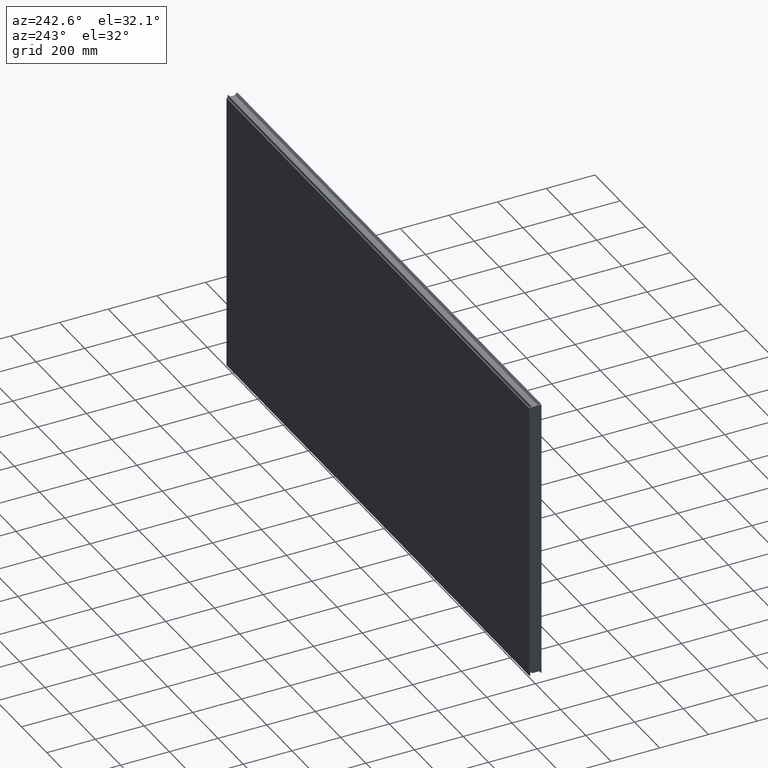
[diagram: clean part render]
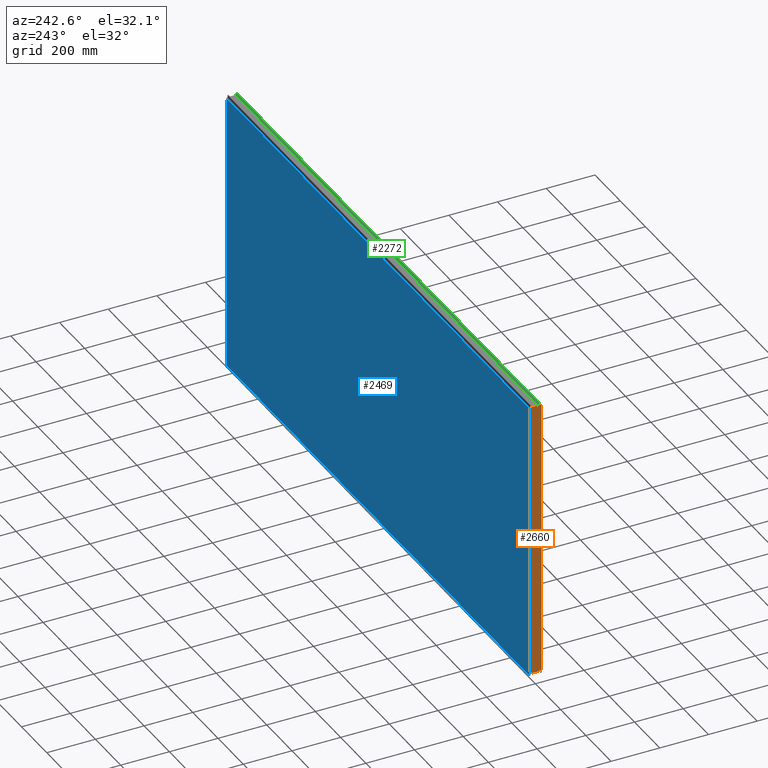
[diagram: same view with three faces highlighted in distinct colors, each labeled with its STEP entity id]
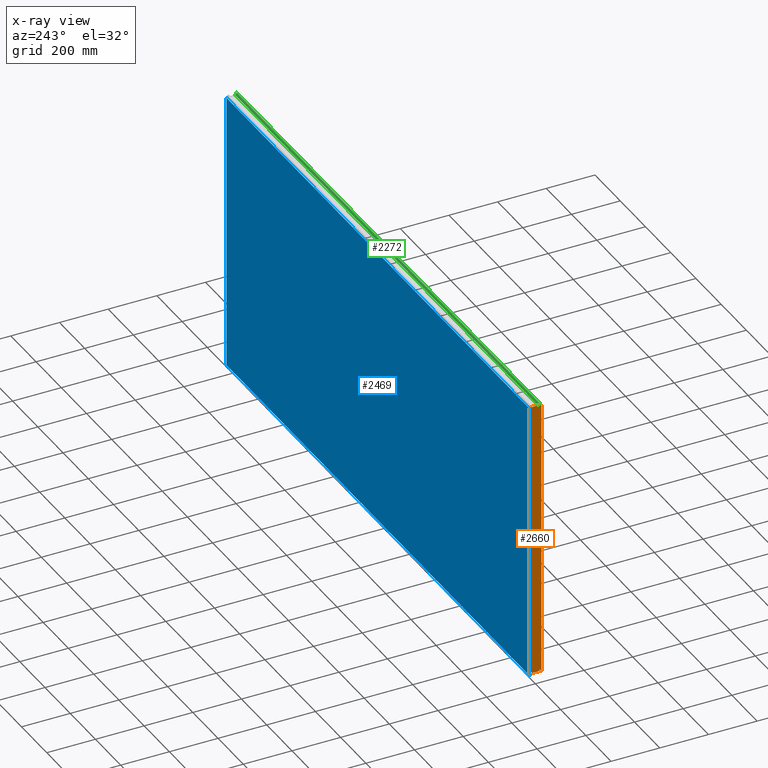
[diagram: x-ray of the same camera — body ghosted, the three highlighted faces saturated]
A machine part, auxiliary view with three faces highlighted in distinct colors.
The next image is the same camera in x-ray (body ghosted, the three faces saturated) — at least one of them is partly hidden behind the body in this view.
Their STEP definitions:

[orange] entity #2660 — the highlighted planar face has unit normal (1, -0, 0).
#2 = CARTESIAN_POINT ( 'NONE',  ( -1200.000000000000227, 13.00000000000478551, 573.0000000000111413 ) ) ;
#22 = CARTESIAN_POINT ( 'NONE',  ( -1200.000000000000227, -24.50000000000007105, 570.0500000000002956 ) ) ;
#23 = DIRECTION ( 'NONE',  ( 1.000000000000000000, 0.000000000000000000, 0.000000000000000000 ) ) ;
#50 = DIRECTION ( 'NONE',  ( 0.000000000000000000, -0.05233595624293120585, 0.9986295347545744994 ) ) ;
#63 = DIRECTION ( 'NONE',  ( -1.000000000000000000, -0.000000000000000000, -0.000000000000000000 ) ) ;
#64 = LINE ( 'NONE', #500, #332 ) ;
#70 = CIRCLE ( 'NONE', #1611, 2.450000000000063238 ) ;
#93 = CARTESIAN_POINT ( 'NONE',  ( -1200.000000000000227, 2684.120642039801169, -572.5868024235513758 ) ) ;
#108 = EDGE_CURVE ( 'NONE', #224, #1026, #551, .T. ) ;
#149 = VERTEX_POINT ( 'NONE', #350 ) ;
#156 = CIRCLE ( 'NONE', #1429, 2.450000000000063238 ) ;
#160 = CIRCLE ( 'NONE', #247, 2.450000000000063238 ) ;
#173 = DIRECTION ( 'NONE',  ( 0.000000000000000000, -0.6691306063588638997, 0.7431448254773891371 ) ) ;
#182 = CARTESIAN_POINT ( 'NONE',  ( -1200.000000000000227, -21.45212422113040773, -580.0811207321764869 ) ) ;
#189 = VECTOR ( 'NONE', #1962, 1000.000000000000000 ) ;
#224 = VERTEX_POINT ( 'NONE', #22 ) ;
#247 = AXIS2_PLACEMENT_3D ( 'NONE', #741, #1572, #1796 ) ;
#267 = VERTEX_POINT ( 'NONE', #2110 ) ;
#294 = DIRECTION ( 'NONE',  ( 0.000000000000000000, -0.7431448254773871387, 0.6691306063588661202 ) ) ;
#332 = VECTOR ( 'NONE', #1332, 1000.000000000000000 ) ;
#350 = CARTESIAN_POINT ( 'NONE',  ( -1200.000000000000227, 24.55000000000007176, -573.0000000000002274 ) ) ;
#351 = VERTEX_POINT ( 'NONE', #884 ) ;
#377 = VECTOR ( 'NONE', #2121, 1000.000000000000000 ) ;
#386 = CARTESIAN_POINT ( 'NONE',  ( -1200.000000000000227, -13.00000000000478551, 572.9999999999886313 ) ) ;
#392 = ORIENTED_EDGE ( 'NONE', *, *, #1952, .T. ) ;
#395 = VERTEX_POINT ( 'NONE', #732 ) ;
#399 = CARTESIAN_POINT ( 'NONE',  ( -1200.000000000000227, -20.91707518332674098, -569.8717769072046622 ) ) ;
#416 = VERTEX_POINT ( 'NONE', #1127 ) ;
#424 = CARTESIAN_POINT ( 'NONE',  ( -1200.000000000000227, -18.47043282317802237, -569.9999999999998863 ) ) ;
#432 = ORIENTED_EDGE ( 'NONE', *, *, #1635, .T. ) ;
#443 = EDGE_CURVE ( 'NONE', #2269, #1265, #2547, .T. ) ;
#444 = VERTEX_POINT ( 'NONE', #926 ) ;
#462 = EDGE_CURVE ( 'NONE', #1609, #395, #1938, .T. ) ;
#464 = VECTOR ( 'NONE', #50, 1000.000000000000114 ) ;
#470 = VECTOR ( 'NONE', #1780, 1000.000000000000000 ) ;
#482 = EDGE_CURVE ( 'NONE', #267, #351, #1142, .T. ) ;
#486 = CARTESIAN_POINT ( 'NONE',  ( -1200.000000000000227, 2684.120642039801169, -573.0000000000000000 ) ) ;
#499 = EDGE_CURVE ( 'NONE', #760, #1401, #2472, .T. ) ;
#500 = CARTESIAN_POINT ( 'NONE',  ( -1200.000000000000227, 2684.120642039801169, 573.0000000000000000 ) ) ;
#510 = LINE ( 'NONE', #1304, #189 ) ;
#529 = ORIENTED_EDGE ( 'NONE', *, *, #482, .T. ) ;
#541 = ORIENTED_EDGE ( 'NONE', *, *, #1547, .T. ) ;
#551 = CIRCLE ( 'NONE', #2599, 4.134690237096227960 ) ;
#553 = CIRCLE ( 'NONE', #2346, 2.450000000000063238 ) ;
#562 = CIRCLE ( 'NONE', #1211, 0.05000000000010551560 ) ;
#576 = DIRECTION ( 'NONE',  ( 1.000000000000000000, 0.000000000000000000, 0.000000000000000000 ) ) ;
#609 = ORIENTED_EDGE ( 'NONE', *, *, #2190, .T. ) ;
#654 = LINE ( 'NONE', #1942, #2136 ) ;
#671 = CARTESIAN_POINT ( 'NONE',  ( -1200.000000000000227, -18.47043282317802237, -569.9999999999998863 ) ) ;
#674 = DIRECTION ( 'NONE',  ( 0.000000000000000000, 1.000000000000000000, 0.000000000000000000 ) ) ;
#707 = ORIENTED_EDGE ( 'NONE', *, *, #1482, .T. ) ;
#709 = EDGE_CURVE ( 'NONE', #267, #1200, #827, .T. ) ;
#715 = CARTESIAN_POINT ( 'NONE',  ( -1200.000000000000227, -12.99999999999997691, -572.5868024235511484 ) ) ;
#717 = CARTESIAN_POINT ( 'NONE',  ( -1200.000000000000227, 21.45212422113040773, -580.0811207321764869 ) ) ;
#732 = CARTESIAN_POINT ( 'NONE',  ( -1200.000000000000227, 20.91707518332674098, -569.8717769072046622 ) ) ;
#741 = CARTESIAN_POINT ( 'NONE',  ( -1200.000000000000227, 18.47043282317802237, -569.9999999999998863 ) ) ;
#759 = CARTESIAN_POINT ( 'NONE',  ( -1200.000000000000227, 13.44999999999999929, -572.5868024235512621 ) ) ;
#760 = VERTEX_POINT ( 'NONE', #2515 ) ;
#810 = DIRECTION ( 'NONE',  ( 0.000000000000000000, -0.05233595624293120585, -0.9986295347545744994 ) ) ;
#824 = VECTOR ( 'NONE', #294, 1000.000000000000000 ) ;
#827 = LINE ( 'NONE', #2, #2644 ) ;
#833 = EDGE_CURVE ( 'NONE', #1401, #149, #1098, .T. ) ;
#836 = EDGE_CURVE ( 'NONE', #416, #2064, #510, .T. ) ;
#841 = CARTESIAN_POINT ( 'NONE',  ( -1200.000000000000227, 13.00000000000034461, -572.5868024235513758 ) ) ;
#850 = CARTESIAN_POINT ( 'NONE',  ( -1200.000000000000227, 18.47043282317802237, -567.5499999999997272 ) ) ;
#878 = EDGE_CURVE ( 'NONE', #1491, #1637, #553, .T. ) ;
#884 = CARTESIAN_POINT ( 'NONE',  ( -1200.000000000000227, -12.99999999999990052, -573.0000000000000000 ) ) ;
#926 = CARTESIAN_POINT ( 'NONE',  ( -1200.000000000000227, 13.44999999999999929, -572.5868024235512621 ) ) ;
#951 = CARTESIAN_POINT ( 'NONE',  ( -1200.000000000000227, 24.50000000000007461, 574.1846902370965608 ) ) ;
#961 = CARTESIAN_POINT ( 'NONE',  ( -1200.000000000000227, -20.53866532607169404, 573.0000000000000000 ) ) ;
#999 = AXIS2_PLACEMENT_3D ( 'NONE', #951, #2007, #1589 ) ;
#1026 = VERTEX_POINT ( 'NONE', #961 ) ;
#1041 = VECTOR ( 'NONE', #1575, 1000.000000000000000 ) ;
#1045 = DIRECTION ( 'NONE',  ( 0.000000000000000000, 4.198290539084077792E-15, 1.000000000000000000 ) ) ;
#1073 = CARTESIAN_POINT ( 'NONE',  ( -1200.000000000000227, -16.64972800075841164, -568.3606300144206216 ) ) ;
#1075 = EDGE_CURVE ( 'NONE', #2546, #1026, #64, .T. ) ;
#1080 = ORIENTED_EDGE ( 'NONE', *, *, #2282, .F. ) ;
#1082 = DIRECTION ( 'NONE',  ( 0.000000000000000000, 0.000000000000000000, -1.000000000000000000 ) ) ;
#1086 = CARTESIAN_POINT ( 'NONE',  ( -1200.000000000000227, -21.08101840872202359, -573.0000000000000000 ) ) ;
#1088 = ORIENTED_EDGE ( 'NONE', *, *, #2374, .T. ) ;
#1091 = ORIENTED_EDGE ( 'NONE', *, *, #709, .F. ) ;
#1098 = LINE ( 'NONE', #1935, #377 ) ;
#1127 = CARTESIAN_POINT ( 'NONE',  ( -1200.000000000000227, -24.55000000000007176, 570.0000000000001137 ) ) ;
#1141 = ORIENTED_EDGE ( 'NONE', *, *, #443, .F. ) ;
#1142 = LINE ( 'NONE', #486, #1860 ) ;
#1146 = ORIENTED_EDGE ( 'NONE', *, *, #499, .T. ) ;
#1161 = LINE ( 'NONE', #1765, #470 ) ;
#1200 = VERTEX_POINT ( 'NONE', #841 ) ;
#1211 = AXIS2_PLACEMENT_3D ( 'NONE', #2271, #2077, #1419 ) ;
#1217 = DIRECTION ( 'NONE',  ( 0.000000000000000000, 4.198290539084077792E-15, -1.000000000000000000 ) ) ;
#1218 = LINE ( 'NONE', #2059, #2564 ) ;
#1234 = ORIENTED_EDGE ( 'NONE', *, *, #836, .F. ) ;
#1252 = VECTOR ( 'NONE', #2653, 1000.000000000000000 ) ;
#1255 = DIRECTION ( 'NONE',  ( 0.000000000000000000, 0.000000000000000000, -1.000000000000000000 ) ) ;
#1265 = VERTEX_POINT ( 'NONE', #715 ) ;
#1304 = CARTESIAN_POINT ( 'NONE',  ( -1200.000000000000227, -24.55000000000007176, 573.0000000000000000 ) ) ;
#1309 = CARTESIAN_POINT ( 'NONE',  ( -1200.000000000000227, 16.64972800075840809, -568.3606300144206216 ) ) ;
#1321 = DIRECTION ( 'NONE',  ( -0.000000000000000000, -1.000000000000000000, -0.000000000000000000 ) ) ;
#1332 = DIRECTION ( 'NONE',  ( -0.000000000000000000, -1.000000000000000000, -0.000000000000000000 ) ) ;
#1354 = VERTEX_POINT ( 'NONE', #2545 ) ;
#1362 = VERTEX_POINT ( 'NONE', #1086 ) ;
#1391 = DIRECTION ( 'NONE',  ( 0.000000000000000000, 0.000000000000000000, -1.000000000000000000 ) ) ;
#1399 = LINE ( 'NONE', #386, #1919 ) ;
#1401 = VERTEX_POINT ( 'NONE', #1785 ) ;
#1416 = CARTESIAN_POINT ( 'NONE',  ( -1200.000000000000227, -24.50000000000007461, 574.1846902370965608 ) ) ;
#1419 = DIRECTION ( 'NONE',  ( 0.000000000000000000, 0.000000000000000000, -1.000000000000000000 ) ) ;
#1421 = CARTESIAN_POINT ( 'NONE',  ( -1200.000000000000227, 20.53866532607163720, 573.0000000000000000 ) ) ;
#1422 = VECTOR ( 'NONE', #674, 1000.000000000000000 ) ;
#1427 = EDGE_CURVE ( 'NONE', #1554, #2269, #2231, .T. ) ;
#1429 = AXIS2_PLACEMENT_3D ( 'NONE', #424, #1875, #1255 ) ;
#1482 = EDGE_CURVE ( 'NONE', #2546, #760, #2433, .T. ) ;
#1491 = VERTEX_POINT ( 'NONE', #2420 ) ;
#1492 = PLANE ( 'NONE',  #2359 ) ;
#1517 = EDGE_CURVE ( 'NONE', #1637, #1362, #2044, .T. ) ;
#1518 = DIRECTION ( 'NONE',  ( 0.000000000000000000, -0.6691306063588638997, -0.7431448254773891371 ) ) ;
#1542 = ORIENTED_EDGE ( 'NONE', *, *, #1427, .F. ) ;
#1547 = EDGE_CURVE ( 'NONE', #2495, #1491, #156, .T. ) ;
#1553 = EDGE_LOOP ( 'NONE', ( #1141, #1542, #432, #541, #2045, #2715, #1652, #1234, #1906, #2458, #2367, #707, #1146, #2527, #2197, #1856, #1088, #392, #609, #1080, #1895, #1091, #529, #1612 ) ) ;
#1554 = VERTEX_POINT ( 'NONE', #1670 ) ;
#1572 = DIRECTION ( 'NONE',  ( 1.000000000000000000, 0.000000000000000000, 0.000000000000000000 ) ) ;
#1575 = DIRECTION ( 'NONE',  ( 0.000000000000000000, -0.7431448254773871387, -0.6691306063588661202 ) ) ;
#1589 = DIRECTION ( 'NONE',  ( 0.000000000000000000, 0.000000000000000000, -1.000000000000000000 ) ) ;
#1609 = VERTEX_POINT ( 'NONE', #1839 ) ;
#1611 = AXIS2_PLACEMENT_3D ( 'NONE', #2349, #23, #1767 ) ;
#1612 = ORIENTED_EDGE ( 'NONE', *, *, #2605, .F. ) ;
#1613 = LINE ( 'NONE', #1819, #1252 ) ;
#1635 = EDGE_CURVE ( 'NONE', #1554, #2495, #1218, .T. ) ;
#1637 = VERTEX_POINT ( 'NONE', #399 ) ;
#1652 = ORIENTED_EDGE ( 'NONE', *, *, #1847, .T. ) ;
#1670 = CARTESIAN_POINT ( 'NONE',  ( -1200.000000000000227, -13.11558482853517305, -572.2856936506898364 ) ) ;
#1679 = CARTESIAN_POINT ( 'NONE',  ( -1200.000000000000227, -13.44999999999973994, -572.5868024235513758 ) ) ;
#1694 = VERTEX_POINT ( 'NONE', #850 ) ;
#1724 = DIRECTION ( 'NONE',  ( 0.000000000000000000, 0.000000000000000000, -1.000000000000000000 ) ) ;
#1746 = DIRECTION ( 'NONE',  ( 0.000000000000000000, 0.000000000000000000, -1.000000000000000000 ) ) ;
#1765 = CARTESIAN_POINT ( 'NONE',  ( -1200.000000000000227, 2684.120642039801169, -573.0000000000000000 ) ) ;
#1767 = DIRECTION ( 'NONE',  ( 0.000000000000000000, 0.000000000000000000, -1.000000000000000000 ) ) ;
#1780 = DIRECTION ( 'NONE',  ( -0.000000000000000000, -1.000000000000000000, -0.000000000000000000 ) ) ;
#1785 = CARTESIAN_POINT ( 'NONE',  ( -1200.000000000000227, 24.55000000000015348, 570.0000000000001137 ) ) ;
#1796 = DIRECTION ( 'NONE',  ( 0.000000000000000000, 0.000000000000000000, -1.000000000000000000 ) ) ;
#1798 = CARTESIAN_POINT ( 'NONE',  ( -1200.000000000000227, 2684.120642039801169, -572.5868024235513758 ) ) ;
#1819 = CARTESIAN_POINT ( 'NONE',  ( -1200.000000000000227, 2684.120642039801169, -573.0000000000000000 ) ) ;
#1839 = CARTESIAN_POINT ( 'NONE',  ( -1200.000000000000227, 21.08101840872202715, -573.0000000000000000 ) ) ;
#1847 = EDGE_CURVE ( 'NONE', #1362, #2064, #1161, .T. ) ;
#1856 = ORIENTED_EDGE ( 'NONE', *, *, #462, .T. ) ;
#1860 = VECTOR ( 'NONE', #1321, 1000.000000000000000 ) ;
#1875 = DIRECTION ( 'NONE',  ( 1.000000000000000000, 0.000000000000000000, 0.000000000000000000 ) ) ;
#1895 = ORIENTED_EDGE ( 'NONE', *, *, #2622, .F. ) ;
#1906 = ORIENTED_EDGE ( 'NONE', *, *, #1972, .T. ) ;
#1919 = VECTOR ( 'NONE', #1217, 1000.000000000000000 ) ;
#1926 = CARTESIAN_POINT ( 'NONE',  ( -1200.000000000000227, 24.50000000000007461, 570.0000000000001137 ) ) ;
#1935 = CARTESIAN_POINT ( 'NONE',  ( -1200.000000000000227, 24.55000000000007176, 573.0000000000000000 ) ) ;
#1938 = LINE ( 'NONE', #717, #464 ) ;
#1942 = CARTESIAN_POINT ( 'NONE',  ( -1200.000000000000227, 16.64972800075840809, -568.3606300144206216 ) ) ;
#1952 = EDGE_CURVE ( 'NONE', #1694, #2414, #160, .T. ) ;
#1962 = DIRECTION ( 'NONE',  ( 0.000000000000000000, 0.000000000000000000, -1.000000000000000000 ) ) ;
#1972 = EDGE_CURVE ( 'NONE', #416, #224, #562, .T. ) ;
#2007 = DIRECTION ( 'NONE',  ( 1.000000000000000000, 0.000000000000000000, 0.000000000000000000 ) ) ;
#2026 = CARTESIAN_POINT ( 'NONE',  ( -1200.000000000000227, -24.55000000000007176, -573.0000000000000000 ) ) ;
#2044 = LINE ( 'NONE', #182, #2518 ) ;
#2045 = ORIENTED_EDGE ( 'NONE', *, *, #878, .T. ) ;
#2059 = CARTESIAN_POINT ( 'NONE',  ( -1200.000000000000227, -16.64972800075840809, -568.3606300144206216 ) ) ;
#2064 = VERTEX_POINT ( 'NONE', #2026 ) ;
#2077 = DIRECTION ( 'NONE',  ( -1.000000000000000000, -0.000000000000000000, -0.000000000000000000 ) ) ;
#2085 = EDGE_CURVE ( 'NONE', #149, #1609, #1613, .T. ) ;
#2110 = CARTESIAN_POINT ( 'NONE',  ( -1200.000000000000227, 12.99999999999990052, -573.0000000000000000 ) ) ;
#2121 = DIRECTION ( 'NONE',  ( 0.000000000000000000, 0.000000000000000000, -1.000000000000000000 ) ) ;
#2136 = VECTOR ( 'NONE', #1518, 1000.000000000000114 ) ;
#2190 = EDGE_CURVE ( 'NONE', #2414, #1354, #654, .T. ) ;
#2197 = ORIENTED_EDGE ( 'NONE', *, *, #2085, .T. ) ;
#2230 = DIRECTION ( 'NONE',  ( 0.000000000000000000, 1.000000000000000000, 0.000000000000000000 ) ) ;
#2231 = LINE ( 'NONE', #2615, #1041 ) ;
#2259 = LINE ( 'NONE', #1798, #2268 ) ;
#2268 = VECTOR ( 'NONE', #2230, 1000.000000000000000 ) ;
#2269 = VERTEX_POINT ( 'NONE', #1679 ) ;
#2271 = CARTESIAN_POINT ( 'NONE',  ( -1200.000000000000227, -24.50000000000007461, 570.0000000000001137 ) ) ;
#2282 = EDGE_CURVE ( 'NONE', #444, #1354, #2380, .T. ) ;
#2346 = AXIS2_PLACEMENT_3D ( 'NONE', #671, #2373, #1724 ) ;
#2349 = CARTESIAN_POINT ( 'NONE',  ( -1200.000000000000227, 18.47043282317802237, -569.9999999999998863 ) ) ;
#2359 = AXIS2_PLACEMENT_3D ( 'NONE', #2721, #2529, #1082 ) ;
#2367 = ORIENTED_EDGE ( 'NONE', *, *, #1075, .F. ) ;
#2373 = DIRECTION ( 'NONE',  ( 1.000000000000000000, 0.000000000000000000, 0.000000000000000000 ) ) ;
#2374 = EDGE_CURVE ( 'NONE', #395, #1694, #70, .T. ) ;
#2380 = LINE ( 'NONE', #759, #824 ) ;
#2414 = VERTEX_POINT ( 'NONE', #1309 ) ;
#2420 = CARTESIAN_POINT ( 'NONE',  ( -1200.000000000000227, -18.47043282317802237, -567.5499999999997272 ) ) ;
#2428 = AXIS2_PLACEMENT_3D ( 'NONE', #1926, #63, #1746 ) ;
#2433 = CIRCLE ( 'NONE', #999, 4.134690237096338983 ) ;
#2458 = ORIENTED_EDGE ( 'NONE', *, *, #108, .T. ) ;
#2472 = CIRCLE ( 'NONE', #2428, 0.05000000000010551560 ) ;
#2488 = FACE_OUTER_BOUND ( 'NONE', #1553, .T. ) ;
#2495 = VERTEX_POINT ( 'NONE', #1073 ) ;
#2515 = CARTESIAN_POINT ( 'NONE',  ( -1200.000000000000227, 24.50000000000007461, 570.0500000000001819 ) ) ;
#2518 = VECTOR ( 'NONE', #810, 1000.000000000000114 ) ;
#2527 = ORIENTED_EDGE ( 'NONE', *, *, #833, .T. ) ;
#2529 = DIRECTION ( 'NONE',  ( 1.000000000000000000, -0.000000000000000000, 0.000000000000000000 ) ) ;
#2545 = CARTESIAN_POINT ( 'NONE',  ( -1200.000000000000227, 13.11558482853517305, -572.2856936506898364 ) ) ;
#2546 = VERTEX_POINT ( 'NONE', #1421 ) ;
#2547 = LINE ( 'NONE', #93, #1422 ) ;
#2564 = VECTOR ( 'NONE', #173, 1000.000000000000114 ) ;
#2599 = AXIS2_PLACEMENT_3D ( 'NONE', #1416, #576, #1391 ) ;
#2605 = EDGE_CURVE ( 'NONE', #1265, #351, #1399, .T. ) ;
#2615 = CARTESIAN_POINT ( 'NONE',  ( -1200.000000000000227, -13.11558482853517305, -572.2856936506898364 ) ) ;
#2622 = EDGE_CURVE ( 'NONE', #1200, #444, #2259, .T. ) ;
#2644 = VECTOR ( 'NONE', #1045, 1000.000000000000000 ) ;
#2653 = DIRECTION ( 'NONE',  ( -0.000000000000000000, -1.000000000000000000, -0.000000000000000000 ) ) ;
#2660 = ADVANCED_FACE ( 'NONE', ( #2488 ), #1492, .F. ) ;
#2715 = ORIENTED_EDGE ( 'NONE', *, *, #1517, .T. ) ;
#2721 = CARTESIAN_POINT ( 'NONE',  ( -1200.000000000000227, 2684.120642039801169, 573.0000000000000000 ) ) ;

[blue] entity #2469 — the highlighted planar face has unit normal (0, -1, 0).
#4 = ORIENTED_EDGE ( 'NONE', *, *, #828, .T. ) ;
#35 = LINE ( 'NONE', #106, #322 ) ;
#76 = DIRECTION ( 'NONE',  ( -1.000000000000000000, -0.000000000000000000, -0.000000000000000000 ) ) ;
#102 = VECTOR ( 'NONE', #2250, 1000.000000000000000 ) ;
#106 = CARTESIAN_POINT ( 'NONE',  ( -1200.000000000000227, 25.00000000000000000, 573.0000000000000000 ) ) ;
#123 = EDGE_CURVE ( 'NONE', #522, #716, #2052, .T. ) ;
#179 = EDGE_LOOP ( 'NONE', ( #2584, #4, #236, #363 ) ) ;
#236 = ORIENTED_EDGE ( 'NONE', *, *, #512, .T. ) ;
#288 = VECTOR ( 'NONE', #744, 1000.000000000000000 ) ;
#322 = VECTOR ( 'NONE', #542, 1000.000000000000000 ) ;
#363 = ORIENTED_EDGE ( 'NONE', *, *, #1433, .F. ) ;
#453 = VERTEX_POINT ( 'NONE', #2590 ) ;
#512 = EDGE_CURVE ( 'NONE', #2157, #453, #35, .T. ) ;
#522 = VERTEX_POINT ( 'NONE', #953 ) ;
#542 = DIRECTION ( 'NONE',  ( -0.000000000000000000, -0.000000000000000000, 1.000000000000000000 ) ) ;
#663 = PLANE ( 'NONE',  #1131 ) ;
#716 = VERTEX_POINT ( 'NONE', #1876 ) ;
#744 = DIRECTION ( 'NONE',  ( -1.000000000000000000, 0.000000000000000000, 0.000000000000000000 ) ) ;
#828 = EDGE_CURVE ( 'NONE', #716, #2157, #1546, .T. ) ;
#885 = CARTESIAN_POINT ( 'NONE',  ( 0.000000000000000000, 25.00000000000000000, 0.000000000000000000 ) ) ;
#953 = CARTESIAN_POINT ( 'NONE',  ( 1199.999999999999773, 25.00000000000007105, 570.0000000000001137 ) ) ;
#1131 = AXIS2_PLACEMENT_3D ( 'NONE', #885, #1717, #1151 ) ;
#1151 = DIRECTION ( 'NONE',  ( 0.000000000000000000, -0.000000000000000000, -1.000000000000000000 ) ) ;
#1179 = LINE ( 'NONE', #2658, #288 ) ;
#1433 = EDGE_CURVE ( 'NONE', #522, #453, #1179, .T. ) ;
#1546 = LINE ( 'NONE', #2383, #2510 ) ;
#1705 = FACE_OUTER_BOUND ( 'NONE', #179, .T. ) ;
#1717 = DIRECTION ( 'NONE',  ( 0.000000000000000000, -1.000000000000000000, 0.000000000000000000 ) ) ;
#1735 = CARTESIAN_POINT ( 'NONE',  ( -1200.000000000000227, 25.00000000000000000, -579.9999999999998863 ) ) ;
#1876 = CARTESIAN_POINT ( 'NONE',  ( 1199.999999999999773, 25.00000000000000000, -579.9999999999998863 ) ) ;
#2052 = LINE ( 'NONE', #2621, #102 ) ;
#2157 = VERTEX_POINT ( 'NONE', #1735 ) ;
#2250 = DIRECTION ( 'NONE',  ( 0.000000000000000000, 0.000000000000000000, -1.000000000000000000 ) ) ;
#2383 = CARTESIAN_POINT ( 'NONE',  ( 1199.999999999999773, 25.00000000000000000, -579.9999999999998863 ) ) ;
#2469 = ADVANCED_FACE ( 'NONE', ( #1705 ), #663, .F. ) ;
#2510 = VECTOR ( 'NONE', #76, 1000.000000000000000 ) ;
#2584 = ORIENTED_EDGE ( 'NONE', *, *, #123, .T. ) ;
#2590 = CARTESIAN_POINT ( 'NONE',  ( -1200.000000000000227, 25.00000000000007105, 570.0000000000001137 ) ) ;
#2621 = CARTESIAN_POINT ( 'NONE',  ( 1199.999999999999773, 25.00000000000000000, 573.0000000000000000 ) ) ;
#2658 = CARTESIAN_POINT ( 'NONE',  ( 4825.050751492372910, 25.00000000000007105, 570.0000000000001137 ) ) ;

[green] entity #2272 — the highlighted planar face has unit normal (-0, 0.7431, 0.6691).
#6 = LINE ( 'NONE', #527, #2307 ) ;
#16 = CARTESIAN_POINT ( 'NONE',  ( -1200.000000000000227, -17.01645127953608139, 581.3382612127178390 ) ) ;
#39 = ORIENTED_EDGE ( 'NONE', *, *, #2453, .F. ) ;
#135 = DIRECTION ( 'NONE',  ( 0.000000000000000000, -0.6691306063588627895, 0.7431448254773901363 ) ) ;
#348 = CARTESIAN_POINT ( 'NONE',  ( 1199.999999999999773, -17.01645127953608139, 581.3382612127178390 ) ) ;
#355 = CARTESIAN_POINT ( 'NONE',  ( -1200.000000000000227, -17.01645127953608139, 581.3382612127178390 ) ) ;
#413 = VERTEX_POINT ( 'NONE', #2580 ) ;
#485 = ORIENTED_EDGE ( 'NONE', *, *, #863, .F. ) ;
#527 = CARTESIAN_POINT ( 'NONE',  ( 1199.999999999999773, -17.01645127953608139, 581.3382612127178390 ) ) ;
#755 = LINE ( 'NONE', #1018, #2574 ) ;
#779 = AXIS2_PLACEMENT_3D ( 'NONE', #348, #1196, #135 ) ;
#863 = EDGE_CURVE ( 'NONE', #2636, #1404, #1085, .T. ) ;
#882 = CARTESIAN_POINT ( 'NONE',  ( 1199.999999999999773, -17.01645127953608139, 581.3382612127178390 ) ) ;
#1018 = CARTESIAN_POINT ( 'NONE',  ( 1199.999999999999773, -9.958849183342193712, 573.5000000000002274 ) ) ;
#1085 = LINE ( 'NONE', #16, #1729 ) ;
#1122 = DIRECTION ( 'NONE',  ( 0.000000000000000000, 0.6691306063588627895, -0.7431448254773901363 ) ) ;
#1178 = DIRECTION ( 'NONE',  ( -1.000000000000000000, -0.000000000000000000, -0.000000000000000000 ) ) ;
#1192 = CARTESIAN_POINT ( 'NONE',  ( -1200.000000000000227, -9.958849183342193712, 573.5000000000002274 ) ) ;
#1196 = DIRECTION ( 'NONE',  ( -0.000000000000000000, 0.7431448254773901363, 0.6691306063588627895 ) ) ;
#1277 = EDGE_CURVE ( 'NONE', #413, #2321, #1964, .T. ) ;
#1329 = DIRECTION ( 'NONE',  ( 0.000000000000000000, 0.6691306063588627895, -0.7431448254773901363 ) ) ;
#1404 = VERTEX_POINT ( 'NONE', #1192 ) ;
#1474 = PLANE ( 'NONE',  #779 ) ;
#1691 = DIRECTION ( 'NONE',  ( -1.000000000000000000, -0.000000000000000000, -0.000000000000000000 ) ) ;
#1721 = FACE_OUTER_BOUND ( 'NONE', #2280, .T. ) ;
#1729 = VECTOR ( 'NONE', #1122, 1000.000000000000000 ) ;
#1751 = CARTESIAN_POINT ( 'NONE',  ( 1199.999999999999773, -9.958849183342193712, 573.5000000000002274 ) ) ;
#1758 = ORIENTED_EDGE ( 'NONE', *, *, #2552, .T. ) ;
#1964 = LINE ( 'NONE', #882, #2083 ) ;
#2083 = VECTOR ( 'NONE', #1329, 1000.000000000000000 ) ;
#2272 = ADVANCED_FACE ( 'NONE', ( #1721 ), #1474, .T. ) ;
#2280 = EDGE_LOOP ( 'NONE', ( #1758, #485, #39, #2554 ) ) ;
#2307 = VECTOR ( 'NONE', #1691, 1000.000000000000000 ) ;
#2321 = VERTEX_POINT ( 'NONE', #1751 ) ;
#2453 = EDGE_CURVE ( 'NONE', #413, #2636, #6, .T. ) ;
#2552 = EDGE_CURVE ( 'NONE', #2321, #1404, #755, .T. ) ;
#2554 = ORIENTED_EDGE ( 'NONE', *, *, #1277, .T. ) ;
#2574 = VECTOR ( 'NONE', #1178, 1000.000000000000000 ) ;
#2580 = CARTESIAN_POINT ( 'NONE',  ( 1199.999999999999773, -17.01645127953608139, 581.3382612127178390 ) ) ;
#2636 = VERTEX_POINT ( 'NONE', #355 ) ;